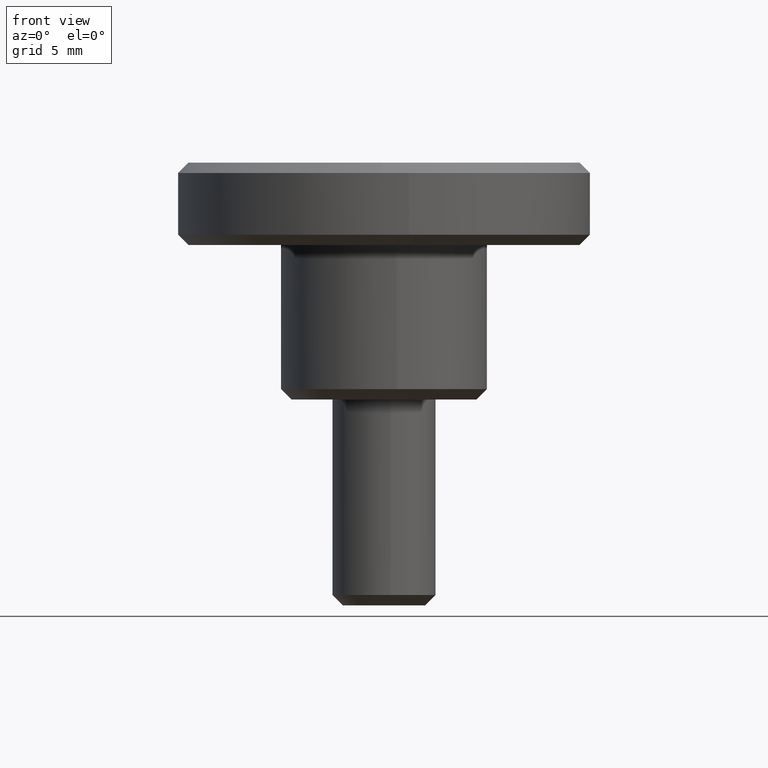
[diagram: clean part render]
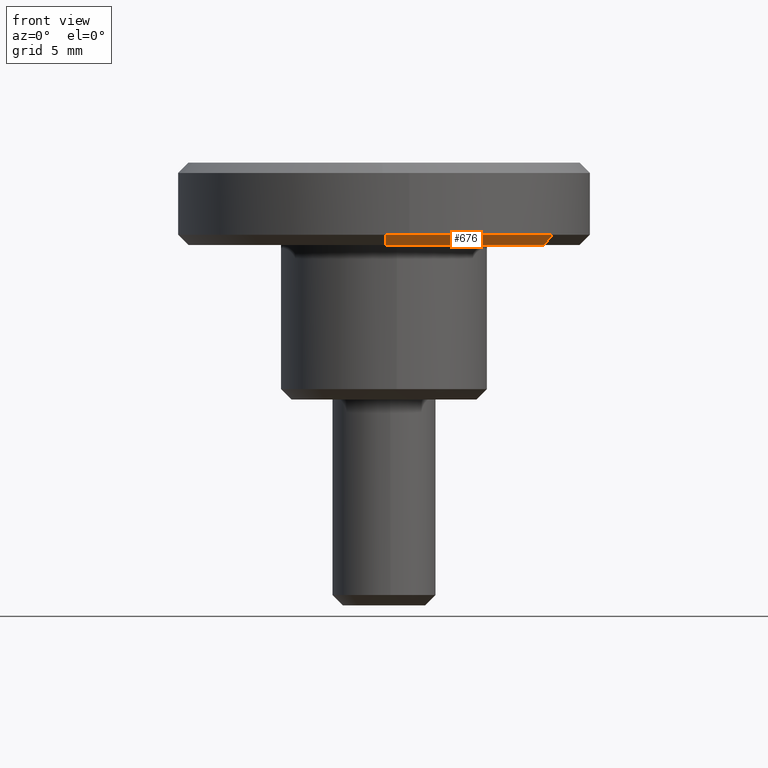
[diagram: same view with one face highlighted and labeled with its STEP entity id]
A machine part, front view. The second image highlights one B-rep face of the part: STEP entity #676.
In plain terms, the highlighted face is a freeform B-spline surface patch.
Its self-contained STEP definition (entity closure, byte-faithful):
#489=CARTESIAN_POINT('',(7.779228070752922,-5.452853438632870,7.500000000000085));
#490=VERTEX_POINT('',#489);
#521=CARTESIAN_POINT('',(0.082902087252670,-9.499638269111962,7.500000000002550));
#522=VERTEX_POINT('',#521);
#538=CARTESIAN_POINT('',(0.087265354984036,-9.999619230641766,8.000000000000146));
#539=VERTEX_POINT('',#538);
#540=CARTESIAN_POINT('',(0.082902087252670,-9.499638269111962,7.500000000002550));
#541=CARTESIAN_POINT('',(0.087265354984036,-9.999619230641766,8.000000000000146));
#542=QUASI_UNIFORM_CURVE('',1,(#540,#541),.UNSPECIFIED.,.F.,.U.);
#543=EDGE_CURVE('',#522,#539,#542,.T.);
#594=CARTESIAN_POINT('',(8.188661127107650,-5.739845724877757,8.000000000000160));
#595=VERTEX_POINT('',#594);
#609=CARTESIAN_POINT('',(7.779228070752922,-5.452853438632870,7.500000000000085));
#610=CARTESIAN_POINT('',(8.188661127107650,-5.739845724877757,8.000000000000160));
#611=QUASI_UNIFORM_CURVE('',1,(#609,#610),.UNSPECIFIED.,.F.,.U.);
#612=EDGE_CURVE('',#490,#595,#611,.T.);
#617=CARTESIAN_POINT('',(0.082793005540823,-9.487138745071432,7.487500000000109));
#618=CARTESIAN_POINT('',(4.966000022812007,-9.444523643036803,7.487500000000109));
#619=CARTESIAN_POINT('',(7.768992244344123,-5.445678631476790,7.487500000000110));
#620=CARTESIAN_POINT('',(0.087377163719812,-10.012431242781030,8.012812500000120));
#621=CARTESIAN_POINT('',(5.240962013534870,-9.967456589148238,8.012812500000120));
#622=CARTESIAN_POINT('',(8.199152849177494,-5.747199902211689,8.012812500000122));
#630=(BOUNDED_SURFACE()B_SPLINE_SURFACE(2,1,((#617,#620),(#618,#621),(#619,#622)),.UNSPECIFIED.,.F.,.F.,.U.)B_SPLINE_SURFACE_WITH_KNOTS((3,3),(2,2),(0.0,9.886015678606006),(0.0,1.0),.UNSPECIFIED.)GEOMETRIC_REPRESENTATION_ITEM()RATIONAL_B_SPLINE_SURFACE(((1.0,1.0),(0.824264068711928,0.824264068711928),(0.859411254969543,0.859411254969543)))REPRESENTATION_ITEM('')SURFACE());
#631=CARTESIAN_POINT('',(7.779228070752922,-5.452853438632870,7.500000000000085));
#632=CARTESIAN_POINT('',(4.972542842354439,-9.456967020676762,7.500000000000111));
#633=CARTESIAN_POINT('',(0.082902087252670,-9.499638269111962,7.500000000002550));
#641=(BOUNDED_CURVE()B_SPLINE_CURVE(2,(#631,#632,#633),.UNSPECIFIED.,.F.,.U.)B_SPLINE_CURVE_WITH_KNOTS((3,3),(0.098673726202873,0.248460105664342),.UNSPECIFIED.)CURVE()GEOMETRIC_REPRESENTATION_ITEM()RATIONAL_B_SPLINE_CURVE((0.860049271925871,0.823090203820786,0.996414028098853))REPRESENTATION_ITEM(''));
#642=EDGE_CURVE('',#490,#522,#641,.T.);
#643=ORIENTED_EDGE('',*,*,#642,.F.);
#644=ORIENTED_EDGE('',*,*,#612,.T.);
#645=CARTESIAN_POINT('',(1.241273483490002,-9.922662956038625,8.000000000000119));
#646=VERTEX_POINT('',#645);
#647=CARTESIAN_POINT('',(1.241273483490001,-9.922662956038625,8.000000000000119));
#648=CARTESIAN_POINT('',(5.642649241165003,-9.372073760067680,8.000000000000121));
#649=CARTESIAN_POINT('',(8.188661127107650,-5.739845724877757,8.000000000000160));
#657=(BOUNDED_CURVE()B_SPLINE_CURVE(2,(#647,#648,#649),.UNSPECIFIED.,.F.,.U.)B_SPLINE_CURVE_WITH_KNOTS((3,3),(0.271473817862368,0.401326273797088),.UNSPECIFIED.)CURVE()GEOMETRIC_REPRESENTATION_ITEM()RATIONAL_B_SPLINE_CURVE((0.954005645893153,0.828008803495067,0.860049271925852))REPRESENTATION_ITEM(''));
#658=EDGE_CURVE('',#646,#595,#657,.T.);
#659=ORIENTED_EDGE('',*,*,#658,.F.);
#660=CARTESIAN_POINT('',(0.087265354984036,-9.999619230641766,8.000000000000146));
#661=CARTESIAN_POINT('',(0.666498284524844,-9.994564341445518,8.000000000000119));
#662=CARTESIAN_POINT('',(1.241273483490001,-9.922662956038625,8.000000000000119));
#670=(BOUNDED_CURVE()B_SPLINE_CURVE(2,(#660,#661,#662),.UNSPECIFIED.,.F.,.U.)B_SPLINE_CURVE_WITH_KNOTS((3,3),(0.251539894334998,0.271473817862368),.UNSPECIFIED.)CURVE()GEOMETRIC_REPRESENTATION_ITEM()RATIONAL_B_SPLINE_CURVE((0.996414028100381,0.973347686080027,0.954005645893153))REPRESENTATION_ITEM(''));
#671=EDGE_CURVE('',#539,#646,#670,.T.);
#672=ORIENTED_EDGE('',*,*,#671,.F.);
#673=ORIENTED_EDGE('',*,*,#543,.F.);
#674=EDGE_LOOP('',(#643,#644,#659,#672,#673));
#675=FACE_OUTER_BOUND('',#674,.T.);
#676=ADVANCED_FACE('',(#675),#630,.T.);